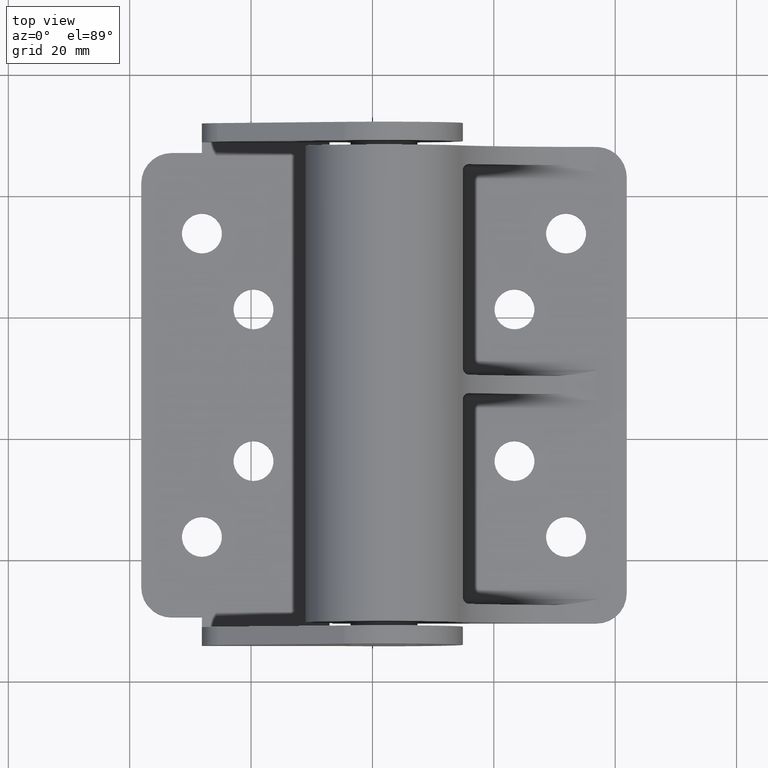
[diagram: clean part render]
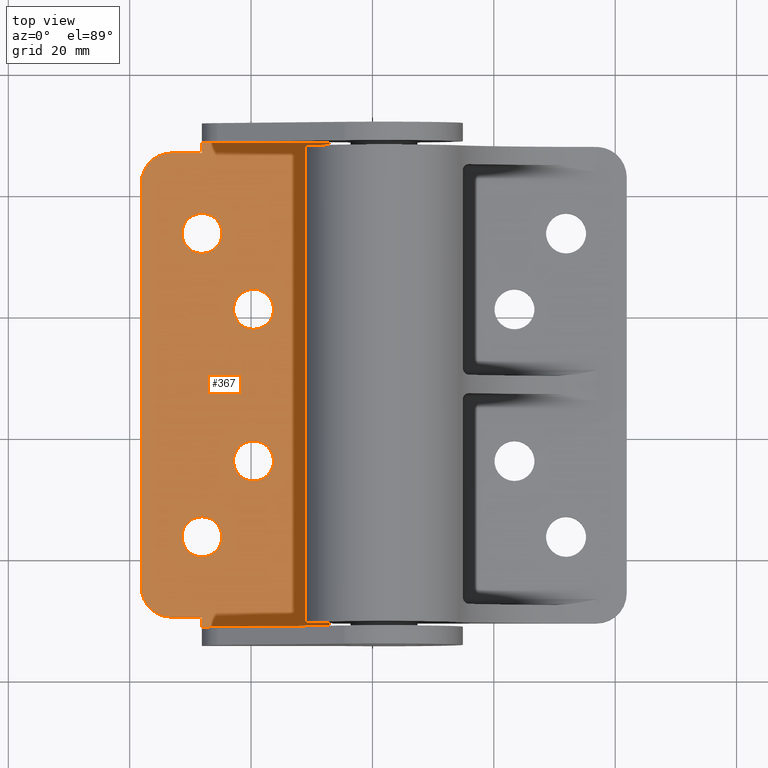
[diagram: same view with one face highlighted and labeled with its STEP entity id]
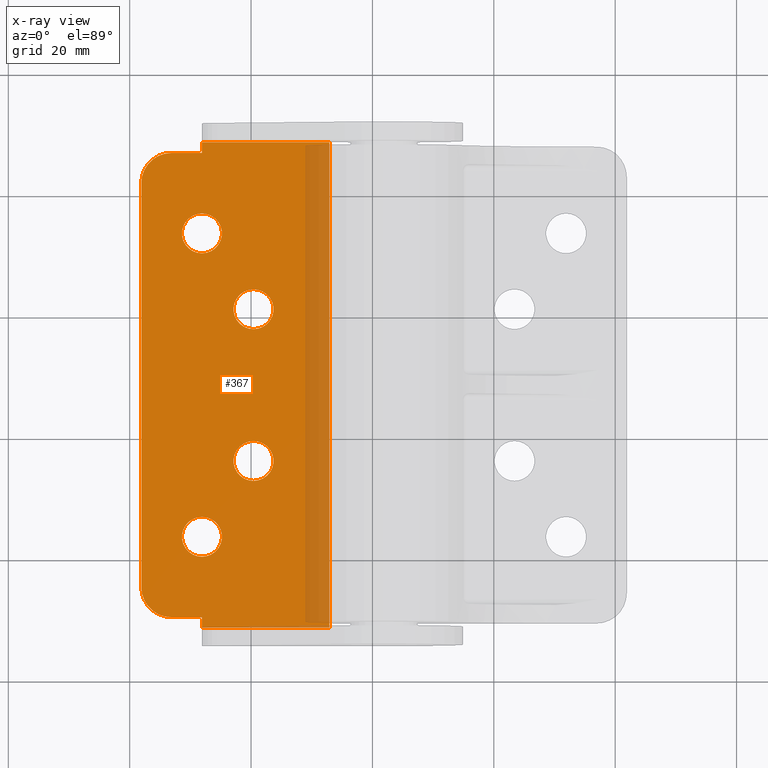
[diagram: x-ray of the same camera — body ghosted, the highlighted face saturated]
A machine part, top view. The second image highlights one B-rep face of the part: STEP entity #367.
The next image is the same camera in x-ray: the body ghosted, the highlighted face saturated — about 13% of this face is hidden behind the body in this view.
In plain terms, the highlighted planar face has unit normal (0, -0, 1).
Its self-contained STEP definition (entity closure, byte-faithful):
#5 = ORIENTED_EDGE ( 'NONE', *, *, #1158, .F. ) ;
#8 = DIRECTION ( 'NONE',  ( -0.0000000000000000000, -1.000000000000000000, -0.0000000000000000000 ) ) ;
#78 = DIRECTION ( 'NONE',  ( 0.0000000000000000000, 0.0000000000000000000, 1.000000000000000000 ) ) ;
#137 = VECTOR ( 'NONE', #2593, 1000.000000000000000 ) ;
#214 = DIRECTION ( 'NONE',  ( 1.387778780781445900E-015, 0.0000000000000000000, 1.000000000000000000 ) ) ;
#220 = CARTESIAN_POINT ( 'NONE',  ( -40.00000000000000000, 11.00000000000000000, 76.25000000000000000 ) ) ;
#225 = DIRECTION ( 'NONE',  ( -0.0000000000000000000, -1.000000000000000000, -0.0000000000000000000 ) ) ;
#230 = LINE ( 'NONE', #519, #3257 ) ;
#247 = ORIENTED_EDGE ( 'NONE', *, *, #412, .T. ) ;
#251 = EDGE_CURVE ( 'NONE', #677, #1078, #1055, .T. ) ;
#265 = CARTESIAN_POINT ( 'NONE',  ( -35.00000000000000000, 11.00000000000000000, 9.750000000000000000 ) ) ;
#311 = CIRCLE ( 'NONE', #3073, 3.299999999999997200 ) ;
#334 = VERTEX_POINT ( 'NONE', #2359 ) ;
#367 = ADVANCED_FACE ( 'NONE', ( #597, #2917, #3013, #2099, #1262 ), #1061, .T. ) ;
#412 = EDGE_CURVE ( 'NONE', #2422, #1008, #3454, .T. ) ;
#455 = ORIENTED_EDGE ( 'NONE', *, *, #931, .F. ) ;
#497 = AXIS2_PLACEMENT_3D ( 'NONE', #265, #225, #214 ) ;
#514 = CARTESIAN_POINT ( 'NONE',  ( -35.00000000000000000, 11.00000000000000000, 81.25000000000000000 ) ) ;
#519 = CARTESIAN_POINT ( 'NONE',  ( -40.00000000000000000, 11.00000000000000000, -914.0000000000000000 ) ) ;
#523 = VERTEX_POINT ( 'NONE', #2660 ) ;
#580 = EDGE_CURVE ( 'NONE', #3452, #1316, #1505, .T. ) ;
#597 = FACE_BOUND ( 'NONE', #2451, .T. ) ;
#651 = CARTESIAN_POINT ( 'NONE',  ( -30.00000000000000000, 11.00000000000000000, 64.70000000000000300 ) ) ;
#664 = DIRECTION ( 'NONE',  ( 0.0000000000000000000, 0.0000000000000000000, 1.000000000000000000 ) ) ;
#673 = EDGE_CURVE ( 'NONE', #2566, #1888, #3497, .T. ) ;
#677 = VERTEX_POINT ( 'NONE', #3512 ) ;
#756 = CARTESIAN_POINT ( 'NONE',  ( -21.50000000000000000, 11.00000000000000000, 55.50000000000000000 ) ) ;
#844 = AXIS2_PLACEMENT_3D ( 'NONE', #3678, #1853, #78 ) ;
#861 = CIRCLE ( 'NONE', #2596, 3.299999999999997200 ) ;
#894 = DIRECTION ( 'NONE',  ( -0.0000000000000000000, -1.000000000000000000, -0.0000000000000000000 ) ) ;
#914 = ORIENTED_EDGE ( 'NONE', *, *, #2771, .F. ) ;
#931 = EDGE_CURVE ( 'NONE', #2275, #1888, #3541, .T. ) ;
#934 = DIRECTION ( 'NONE',  ( -0.0000000000000000000, -1.000000000000000000, -0.0000000000000000000 ) ) ;
#1003 = EDGE_LOOP ( 'NONE', ( #1710, #2331 ) ) ;
#1008 = VERTEX_POINT ( 'NONE', #2217 ) ;
#1037 = DIRECTION ( 'NONE',  ( 0.0000000000000000000, 0.0000000000000000000, 1.000000000000000000 ) ) ;
#1047 = VECTOR ( 'NONE', #3481, 1000.000000000000000 ) ;
#1053 = VECTOR ( 'NONE', #2216, 1000.000000000000000 ) ;
#1055 = CIRCLE ( 'NONE', #1534, 3.299999999999997200 ) ;
#1061 = PLANE ( 'NONE',  #3789 ) ;
#1078 = VERTEX_POINT ( 'NONE', #1392 ) ;
#1086 = CIRCLE ( 'NONE', #1994, 3.299999999999997200 ) ;
#1158 = EDGE_CURVE ( 'NONE', #3087, #1906, #2670, .T. ) ;
#1217 = ORIENTED_EDGE ( 'NONE', *, *, #2831, .F. ) ;
#1240 = CARTESIAN_POINT ( 'NONE',  ( -30.00000000000000000, 11.00000000000000000, 71.29999999999999700 ) ) ;
#1241 = DIRECTION ( 'NONE',  ( 0.0000000000000000000, -1.000000000000000000, 0.0000000000000000000 ) ) ;
#1262 = FACE_OUTER_BOUND ( 'NONE', #1427, .T. ) ;
#1282 = AXIS2_PLACEMENT_3D ( 'NONE', #2713, #894, #3028 ) ;
#1294 = DIRECTION ( 'NONE',  ( -0.0000000000000000000, -1.000000000000000000, -0.0000000000000000000 ) ) ;
#1304 = EDGE_CURVE ( 'NONE', #3452, #2308, #2529, .T. ) ;
#1316 = VERTEX_POINT ( 'NONE', #3374 ) ;
#1319 = EDGE_CURVE ( 'NONE', #1316, #2275, #3350, .T. ) ;
#1373 = EDGE_CURVE ( 'NONE', #2851, #1757, #2389, .T. ) ;
#1392 = CARTESIAN_POINT ( 'NONE',  ( -21.50000000000000000, 11.00000000000000000, 33.79999999999999700 ) ) ;
#1422 = DIRECTION ( 'NONE',  ( -0.0000000000000000000, -1.000000000000000000, -0.0000000000000000000 ) ) ;
#1427 = EDGE_LOOP ( 'NONE', ( #2512, #3473, #1217, #247, #1974, #2150, #3370, #1524, #455, #2548 ) ) ;
#1439 = EDGE_LOOP ( 'NONE', ( #1593, #3424 ) ) ;
#1505 = LINE ( 'NONE', #3694, #3059 ) ;
#1524 = ORIENTED_EDGE ( 'NONE', *, *, #673, .T. ) ;
#1534 = AXIS2_PLACEMENT_3D ( 'NONE', #2961, #2931, #2916 ) ;
#1593 = ORIENTED_EDGE ( 'NONE', *, *, #2536, .F. ) ;
#1630 = CARTESIAN_POINT ( 'NONE',  ( -21.50000000000000000, 11.00000000000000000, 52.20000000000000300 ) ) ;
#1659 = CARTESIAN_POINT ( 'NONE',  ( -30.00000000000000000, 11.00000000000000000, 83.00000000000000000 ) ) ;
#1710 = ORIENTED_EDGE ( 'NONE', *, *, #2220, .F. ) ;
#1752 = CIRCLE ( 'NONE', #1282, 3.300000000000000700 ) ;
#1757 = VERTEX_POINT ( 'NONE', #2972 ) ;
#1774 = CARTESIAN_POINT ( 'NONE',  ( -21.50000000000000000, 11.00000000000000000, 30.50000000000000000 ) ) ;
#1800 = LINE ( 'NONE', #3232, #137 ) ;
#1853 = DIRECTION ( 'NONE',  ( -0.0000000000000000000, -1.000000000000000000, -0.0000000000000000000 ) ) ;
#1875 = CARTESIAN_POINT ( 'NONE',  ( -9.000000000000108400, 11.00000000000000000, 83.00000000000000000 ) ) ;
#1888 = VERTEX_POINT ( 'NONE', #1875 ) ;
#1906 = VERTEX_POINT ( 'NONE', #1240 ) ;
#1974 = ORIENTED_EDGE ( 'NONE', *, *, #3328, .T. ) ;
#1994 = AXIS2_PLACEMENT_3D ( 'NONE', #756, #2875, #1037 ) ;
#2004 = DIRECTION ( 'NONE',  ( 1.000000000000000000, -0.0000000000000000000, -0.0000000000000000000 ) ) ;
#2086 = DIRECTION ( 'NONE',  ( 0.0000000000000000000, 0.0000000000000000000, 1.000000000000000000 ) ) ;
#2099 = FACE_BOUND ( 'NONE', #1439, .T. ) ;
#2112 = DIRECTION ( 'NONE',  ( 0.0000000000000000000, 0.0000000000000000000, 1.000000000000000000 ) ) ;
#2126 = AXIS2_PLACEMENT_3D ( 'NONE', #1774, #8, #2086 ) ;
#2150 = ORIENTED_EDGE ( 'NONE', *, *, #1373, .F. ) ;
#2179 = CIRCLE ( 'NONE', #844, 3.300000000000000700 ) ;
#2216 = DIRECTION ( 'NONE',  ( 0.0000000000000000000, 0.0000000000000000000, 1.000000000000000000 ) ) ;
#2217 = CARTESIAN_POINT ( 'NONE',  ( -35.00000000000000000, 11.00000000000000000, 4.750000000000000000 ) ) ;
#2220 = EDGE_CURVE ( 'NONE', #3344, #334, #1086, .T. ) ;
#2223 = DIRECTION ( 'NONE',  ( 0.0000000000000000000, 0.0000000000000000000, 1.000000000000000000 ) ) ;
#2275 = VERTEX_POINT ( 'NONE', #1659 ) ;
#2295 = EDGE_CURVE ( 'NONE', #2851, #2566, #1800, .T. ) ;
#2308 = VERTEX_POINT ( 'NONE', #220 ) ;
#2309 = EDGE_LOOP ( 'NONE', ( #3318, #2465 ) ) ;
#2331 = ORIENTED_EDGE ( 'NONE', *, *, #3077, .F. ) ;
#2350 = CARTESIAN_POINT ( 'NONE',  ( -9.000000000000108400, 11.00000000000000000, -917.0000000000000000 ) ) ;
#2359 = CARTESIAN_POINT ( 'NONE',  ( -21.50000000000000000, 11.00000000000000000, 58.79999999999999700 ) ) ;
#2389 = LINE ( 'NONE', #2445, #3870 ) ;
#2422 = VERTEX_POINT ( 'NONE', #3571 ) ;
#2445 = CARTESIAN_POINT ( 'NONE',  ( -30.00000000000000000, 11.00000000000000000, -917.0000000000000000 ) ) ;
#2451 = EDGE_LOOP ( 'NONE', ( #5, #914 ) ) ;
#2465 = ORIENTED_EDGE ( 'NONE', *, *, #2491, .F. ) ;
#2491 = EDGE_CURVE ( 'NONE', #1078, #677, #3573, .T. ) ;
#2512 = ORIENTED_EDGE ( 'NONE', *, *, #580, .F. ) ;
#2529 = CIRCLE ( 'NONE', #3693, 5.000000000000004400 ) ;
#2536 = EDGE_CURVE ( 'NONE', #3377, #523, #1752, .T. ) ;
#2548 = ORIENTED_EDGE ( 'NONE', *, *, #1319, .F. ) ;
#2566 = VERTEX_POINT ( 'NONE', #2727 ) ;
#2593 = DIRECTION ( 'NONE',  ( 1.000000000000000000, -0.0000000000000000000, -0.0000000000000000000 ) ) ;
#2596 = AXIS2_PLACEMENT_3D ( 'NONE', #2755, #934, #3070 ) ;
#2618 = VECTOR ( 'NONE', #2766, 1000.000000000000000 ) ;
#2660 = CARTESIAN_POINT ( 'NONE',  ( -30.00000000000000000, 11.00000000000000000, 21.30000000000000100 ) ) ;
#2667 = EDGE_CURVE ( 'NONE', #523, #3377, #2179, .T. ) ;
#2670 = CIRCLE ( 'NONE', #3768, 3.299999999999997200 ) ;
#2672 = LINE ( 'NONE', #3761, #1047 ) ;
#2713 = CARTESIAN_POINT ( 'NONE',  ( -30.00000000000000000, 11.00000000000000000, 18.00000000000000000 ) ) ;
#2727 = CARTESIAN_POINT ( 'NONE',  ( -9.000000000000000000, 11.00000000000000000, 3.000000000000000000 ) ) ;
#2755 = CARTESIAN_POINT ( 'NONE',  ( -21.50000000000000000, 11.00000000000000000, 55.50000000000000000 ) ) ;
#2766 = DIRECTION ( 'NONE',  ( 0.0000000000000000000, 0.0000000000000000000, 1.000000000000000000 ) ) ;
#2771 = EDGE_CURVE ( 'NONE', #1906, #3087, #311, .T. ) ;
#2800 = CARTESIAN_POINT ( 'NONE',  ( -30.00000000000000000, 11.00000000000000000, -917.0000000000000000 ) ) ;
#2831 = EDGE_CURVE ( 'NONE', #2422, #2308, #230, .T. ) ;
#2851 = VERTEX_POINT ( 'NONE', #3820 ) ;
#2875 = DIRECTION ( 'NONE',  ( -0.0000000000000000000, -1.000000000000000000, -0.0000000000000000000 ) ) ;
#2916 = DIRECTION ( 'NONE',  ( 0.0000000000000000000, 0.0000000000000000000, 1.000000000000000000 ) ) ;
#2917 = FACE_BOUND ( 'NONE', #1003, .T. ) ;
#2931 = DIRECTION ( 'NONE',  ( -0.0000000000000000000, -1.000000000000000000, -0.0000000000000000000 ) ) ;
#2961 = CARTESIAN_POINT ( 'NONE',  ( -21.50000000000000000, 11.00000000000000000, 30.50000000000000000 ) ) ;
#2972 = CARTESIAN_POINT ( 'NONE',  ( -30.00000000000000000, 11.00000000000000000, 4.750000000000000000 ) ) ;
#3013 = FACE_BOUND ( 'NONE', #2309, .T. ) ;
#3028 = DIRECTION ( 'NONE',  ( 0.0000000000000000000, 0.0000000000000000000, 1.000000000000000000 ) ) ;
#3059 = VECTOR ( 'NONE', #2004, 1000.000000000000000 ) ;
#3070 = DIRECTION ( 'NONE',  ( 0.0000000000000000000, 0.0000000000000000000, 1.000000000000000000 ) ) ;
#3073 = AXIS2_PLACEMENT_3D ( 'NONE', #3153, #1294, #3465 ) ;
#3077 = EDGE_CURVE ( 'NONE', #334, #3344, #861, .T. ) ;
#3079 = DIRECTION ( 'NONE',  ( -0.0000000000000000000, -1.000000000000000000, -0.0000000000000000000 ) ) ;
#3086 = CARTESIAN_POINT ( 'NONE',  ( -35.00000000000000000, 11.00000000000000000, 76.25000000000000000 ) ) ;
#3087 = VERTEX_POINT ( 'NONE', #651 ) ;
#3130 = CARTESIAN_POINT ( 'NONE',  ( -30.00000000000000000, 11.00000000000000000, 68.00000000000000000 ) ) ;
#3153 = CARTESIAN_POINT ( 'NONE',  ( -30.00000000000000000, 11.00000000000000000, 68.00000000000000000 ) ) ;
#3202 = CARTESIAN_POINT ( 'NONE',  ( -30.00000000000000000, 11.00000000000000000, 14.69999999999999800 ) ) ;
#3232 = CARTESIAN_POINT ( 'NONE',  ( -30.00000000000000000, 11.00000000000000000, 3.000000000000000000 ) ) ;
#3242 = DIRECTION ( 'NONE',  ( 1.000000000000000000, -0.0000000000000000000, -0.0000000000000000000 ) ) ;
#3257 = VECTOR ( 'NONE', #3547, 1000.000000000000000 ) ;
#3316 = CARTESIAN_POINT ( 'NONE',  ( -30.00000000000000000, 11.00000000000000000, 83.00000000000000000 ) ) ;
#3318 = ORIENTED_EDGE ( 'NONE', *, *, #251, .F. ) ;
#3328 = EDGE_CURVE ( 'NONE', #1008, #1757, #2672, .T. ) ;
#3344 = VERTEX_POINT ( 'NONE', #1630 ) ;
#3350 = LINE ( 'NONE', #2800, #2618 ) ;
#3370 = ORIENTED_EDGE ( 'NONE', *, *, #2295, .T. ) ;
#3374 = CARTESIAN_POINT ( 'NONE',  ( -30.00000000000000000, 11.00000000000000000, 81.25000000000000000 ) ) ;
#3377 = VERTEX_POINT ( 'NONE', #3202 ) ;
#3424 = ORIENTED_EDGE ( 'NONE', *, *, #2667, .F. ) ;
#3440 = DIRECTION ( 'NONE',  ( 0.0000000000000000000, 0.0000000000000000000, -1.000000000000000000 ) ) ;
#3448 = VECTOR ( 'NONE', #3242, 1000.000000000000000 ) ;
#3452 = VERTEX_POINT ( 'NONE', #514 ) ;
#3454 = CIRCLE ( 'NONE', #497, 4.999999999999999100 ) ;
#3465 = DIRECTION ( 'NONE',  ( 0.0000000000000000000, 0.0000000000000000000, 1.000000000000000000 ) ) ;
#3473 = ORIENTED_EDGE ( 'NONE', *, *, #1304, .T. ) ;
#3481 = DIRECTION ( 'NONE',  ( 1.000000000000000000, -0.0000000000000000000, -0.0000000000000000000 ) ) ;
#3497 = LINE ( 'NONE', #2350, #1053 ) ;
#3512 = CARTESIAN_POINT ( 'NONE',  ( -21.50000000000000000, 11.00000000000000000, 27.19999999999999900 ) ) ;
#3541 = LINE ( 'NONE', #3316, #3448 ) ;
#3547 = DIRECTION ( 'NONE',  ( 0.0000000000000000000, 0.0000000000000000000, 1.000000000000000000 ) ) ;
#3571 = CARTESIAN_POINT ( 'NONE',  ( -40.00000000000000000, 11.00000000000000000, 9.750000000000000000 ) ) ;
#3573 = CIRCLE ( 'NONE', #2126, 3.299999999999997200 ) ;
#3600 = CARTESIAN_POINT ( 'NONE',  ( -40.00000000000000000, 11.00000000000000000, -914.0000000000000000 ) ) ;
#3678 = CARTESIAN_POINT ( 'NONE',  ( -30.00000000000000000, 11.00000000000000000, 18.00000000000000000 ) ) ;
#3693 = AXIS2_PLACEMENT_3D ( 'NONE', #3086, #3079, #2112 ) ;
#3694 = CARTESIAN_POINT ( 'NONE',  ( 0.0000000000000000000, 11.00000000000000000, 81.25000000000000000 ) ) ;
#3761 = CARTESIAN_POINT ( 'NONE',  ( 0.0000000000000000000, 11.00000000000000000, 4.750000000000000000 ) ) ;
#3768 = AXIS2_PLACEMENT_3D ( 'NONE', #3130, #1422, #664 ) ;
#3789 = AXIS2_PLACEMENT_3D ( 'NONE', #3600, #1241, #3440 ) ;
#3820 = CARTESIAN_POINT ( 'NONE',  ( -30.00000000000000000, 11.00000000000000000, 3.000000000000000000 ) ) ;
#3870 = VECTOR ( 'NONE', #2223, 1000.000000000000000 ) ;